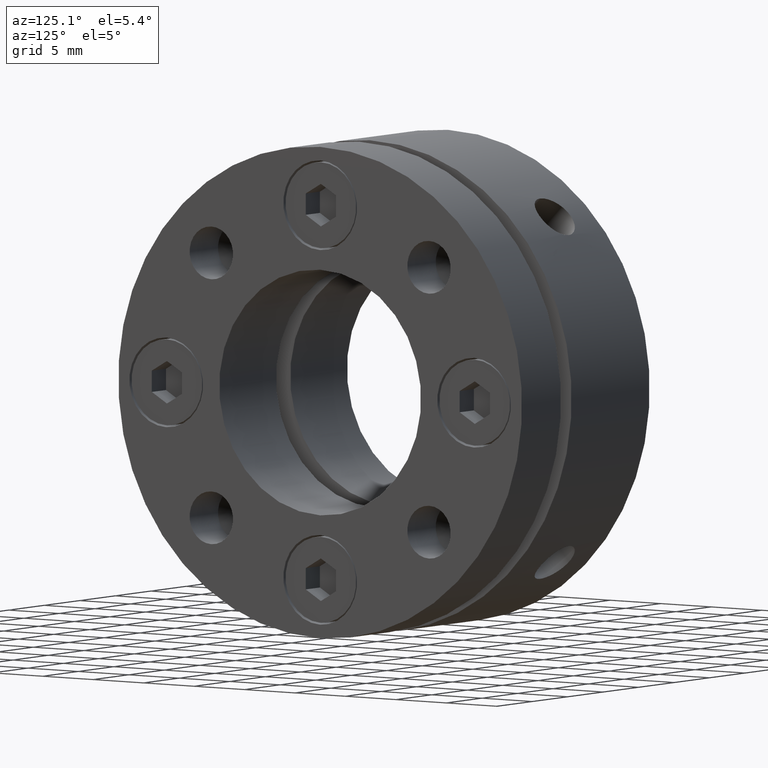
[diagram: clean part render]
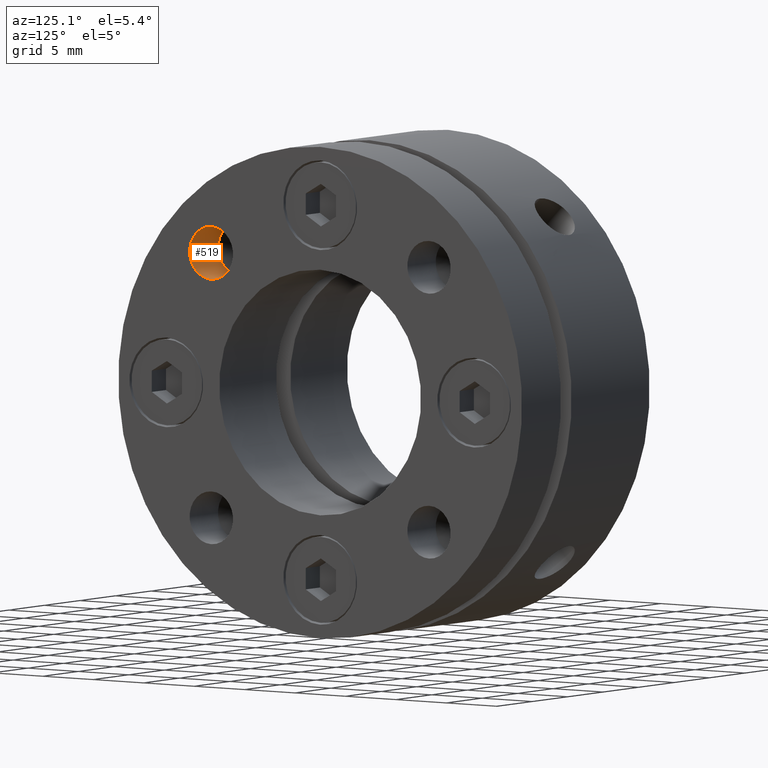
[diagram: same view with one face highlighted and labeled with its STEP entity id]
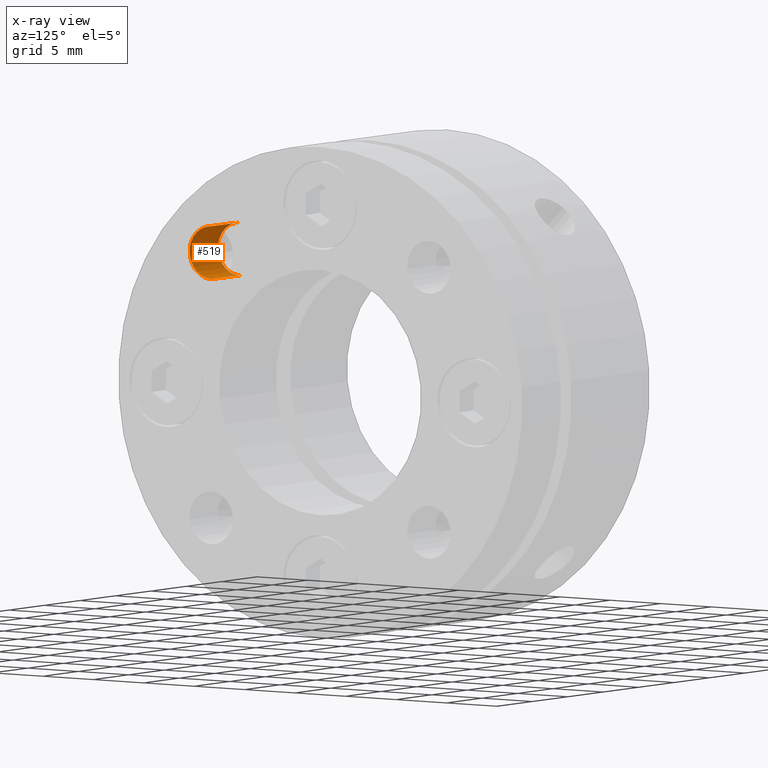
[diagram: x-ray of the same camera — body ghosted, the highlighted face saturated]
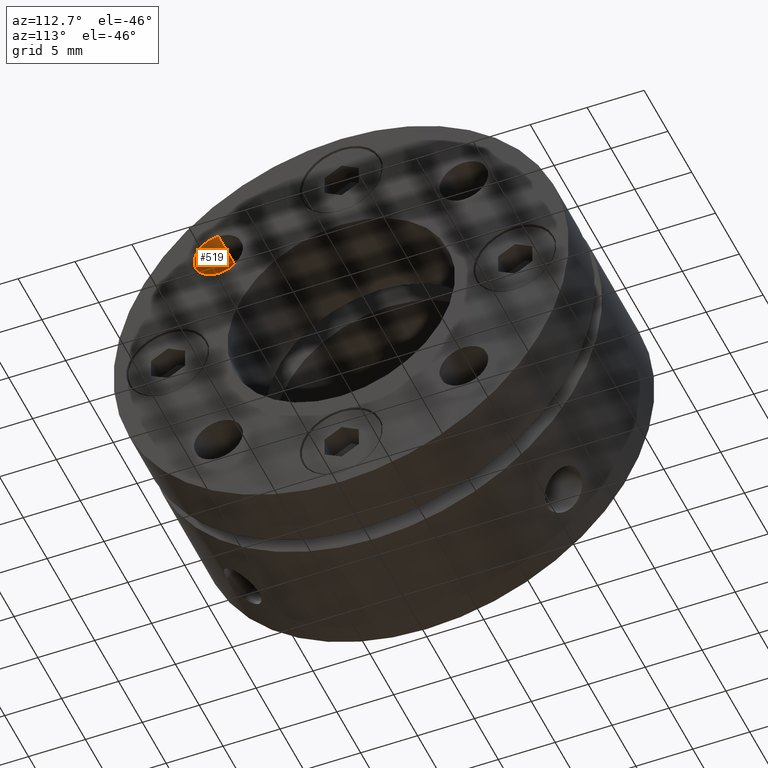
[diagram: same view with one face highlighted and labeled with its STEP entity id]
A machine part, auxiliary view. The second image highlights one B-rep face of the part: STEP entity #519.
The next image is the same camera in x-ray: the body ghosted, the highlighted face saturated — about 0% of this face is hidden behind the body in this view.
A second angle (auxiliary view) of the same face is appended — the face is thin or edge-on in the first view.
In plain terms, the highlighted cylindrical surface (edge-blend (fillet) strip) has radius 2.15 mm, axis along (1, 0, 0).
Its self-contained STEP definition (entity closure, byte-faithful):
#195 = FACE_OUTER_BOUND ( 'NONE', #3264, .T. ) ;
#202 = CYLINDRICAL_SURFACE ( 'NONE', #2602, 2.150000000000000800 ) ;
#519 = ADVANCED_FACE ( 'NONE', ( #195 ), #202, .F. ) ;
#1156 = LINE ( 'NONE', #1705, #1163 ) ;
#1163 = VECTOR ( 'NONE', #1701, 1000.000000000000000 ) ;
#1164 = CIRCLE ( 'NONE', #2179, 2.150000000000000800 ) ;
#1188 = LINE ( 'NONE', #1662, #1193 ) ;
#1190 = CIRCLE ( 'NONE', #2186, 2.150000000000000800 ) ;
#1193 = VECTOR ( 'NONE', #1656, 1000.000000000000000 ) ;
#1300 = VERTEX_POINT ( 'NONE', #1954 ) ;
#1338 = VERTEX_POINT ( 'NONE', #1928 ) ;
#1351 = ORIENTED_EDGE ( 'NONE', *, *, #2555, .F. ) ;
#1512 = VERTEX_POINT ( 'NONE', #1873 ) ;
#1531 = VERTEX_POINT ( 'NONE', #1856 ) ;
#1549 = ORIENTED_EDGE ( 'NONE', *, *, #2535, .F. ) ;
#1557 = ORIENTED_EDGE ( 'NONE', *, *, #2554, .T. ) ;
#1574 = ORIENTED_EDGE ( 'NONE', *, *, #2539, .F. ) ;
#1652 = DIRECTION ( 'NONE',  ( 0.0000000000000000000, 0.0000000000000000000, -1.000000000000000000 ) ) ;
#1653 = DIRECTION ( 'NONE',  ( 1.000000000000000000, 0.0000000000000000000, 0.0000000000000000000 ) ) ;
#1654 = CARTESIAN_POINT ( 'NONE',  ( 13.99999999999999500, -10.78337841309485200, 10.78337841309485200 ) ) ;
#1656 = DIRECTION ( 'NONE',  ( 1.000000000000000000, 0.0000000000000000000, 0.0000000000000000000 ) ) ;
#1662 = CARTESIAN_POINT ( 'NONE',  ( 15.99999999999999300, -10.78337841309485200, 12.93337841309485200 ) ) ;
#1692 = DIRECTION ( 'NONE',  ( 0.0000000000000000000, 0.0000000000000000000, -1.000000000000000000 ) ) ;
#1693 = DIRECTION ( 'NONE',  ( -1.000000000000000000, -0.0000000000000000000, -0.0000000000000000000 ) ) ;
#1694 = CARTESIAN_POINT ( 'NONE',  ( 17.99999999999999300, -10.78337841309485200, 10.78337841309485200 ) ) ;
#1701 = DIRECTION ( 'NONE',  ( 1.000000000000000000, 0.0000000000000000000, 0.0000000000000000000 ) ) ;
#1705 = CARTESIAN_POINT ( 'NONE',  ( 15.99999999999999300, -10.78337841309485200, 8.633378413094851200 ) ) ;
#1856 = CARTESIAN_POINT ( 'NONE',  ( 17.99999999999999300, -10.78337841309485200, 8.633378413094851200 ) ) ;
#1873 = CARTESIAN_POINT ( 'NONE',  ( 17.99999999999999300, -10.78337841309485200, 12.93337841309485200 ) ) ;
#1928 = CARTESIAN_POINT ( 'NONE',  ( 13.99999999999999500, -10.78337841309485200, 12.93337841023941700 ) ) ;
#1954 = CARTESIAN_POINT ( 'NONE',  ( 13.99999999999999500, -10.78337841309485200, 8.633378415950284400 ) ) ;
#2179 = AXIS2_PLACEMENT_3D ( 'NONE', #1694, #1693, #1692 ) ;
#2186 = AXIS2_PLACEMENT_3D ( 'NONE', #1654, #1653, #1652 ) ;
#2535 = EDGE_CURVE ( 'NONE', #1300, #1531, #1156, .T. ) ;
#2539 = EDGE_CURVE ( 'NONE', #1531, #1512, #1164, .T. ) ;
#2554 = EDGE_CURVE ( 'NONE', #1338, #1512, #1188, .T. ) ;
#2555 = EDGE_CURVE ( 'NONE', #1338, #1300, #1190, .T. ) ;
#2602 = AXIS2_PLACEMENT_3D ( 'NONE', #3393, #3266, #3447 ) ;
#3264 = EDGE_LOOP ( 'NONE', ( #1351, #1557, #1574, #1549 ) ) ;
#3266 = DIRECTION ( 'NONE',  ( 1.000000000000000000, 0.0000000000000000000, 0.0000000000000000000 ) ) ;
#3393 = CARTESIAN_POINT ( 'NONE',  ( 15.99999999999999300, -10.78337841309485200, 10.78337841309485200 ) ) ;
#3447 = DIRECTION ( 'NONE',  ( 0.0000000000000000000, 0.0000000000000000000, -1.000000000000000000 ) ) ;